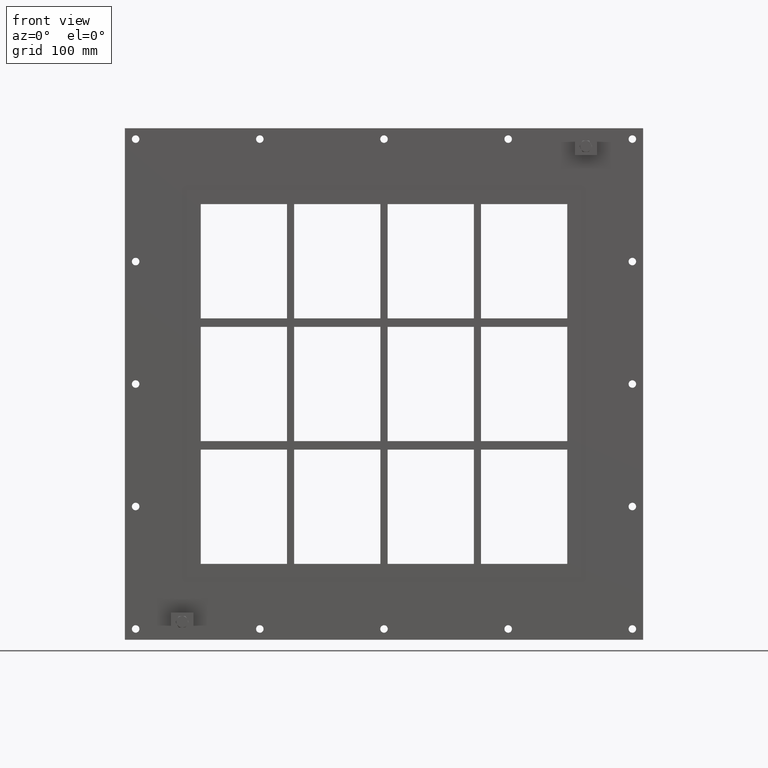
[diagram: clean part render]
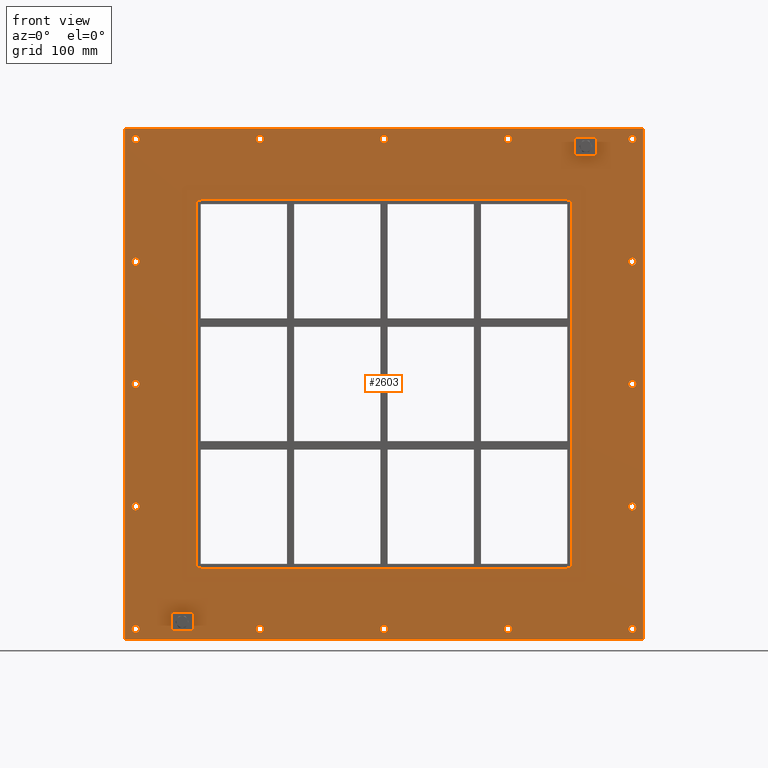
[diagram: same view with one face highlighted and labeled with its STEP entity id]
A machine part, front view. The second image highlights one B-rep face of the part: STEP entity #2603.
In plain terms, the highlighted planar face has unit normal (0, 1, 0).
Its self-contained STEP definition (entity closure, byte-faithful):
#84=CARTESIAN_POINT('',(-341.75000000000017,0.0,-342.25000000000011));
#85=VERTEX_POINT('',#84);
#86=CARTESIAN_POINT('',(-347.00000000000017,0.0,-342.25000000000011));
#87=DIRECTION('',(0.0,1.0,0.0));
#88=DIRECTION('',(1.0,0.0,0.0));
#89=AXIS2_PLACEMENT_3D('',#86,#87,#88);
#90=CIRCLE('',#89,5.25);
#91=EDGE_CURVE('',#85,#85,#90,.T.);
#112=CARTESIAN_POINT('',(352.24999999999989,0.0,-171.15000000000009));
#113=VERTEX_POINT('',#112);
#114=CARTESIAN_POINT('',(346.99999999999989,0.0,-171.15000000000009));
#115=DIRECTION('',(0.0,1.0,0.0));
#116=DIRECTION('',(1.0,0.0,0.0));
#117=AXIS2_PLACEMENT_3D('',#114,#115,#116);
#118=CIRCLE('',#117,5.25);
#119=EDGE_CURVE('',#113,#113,#118,.T.);
#140=CARTESIAN_POINT('',(-341.75000000000017,0.0,-171.15000000000009));
#141=VERTEX_POINT('',#140);
#142=CARTESIAN_POINT('',(-347.00000000000017,0.0,-171.15000000000009));
#143=DIRECTION('',(0.0,1.0,0.0));
#144=DIRECTION('',(1.0,0.0,0.0));
#145=AXIS2_PLACEMENT_3D('',#142,#143,#144);
#146=CIRCLE('',#145,5.25);
#147=EDGE_CURVE('',#141,#141,#146,.T.);
#168=CARTESIAN_POINT('',(352.24999999999989,0.0,-0.050000000000097));
#169=VERTEX_POINT('',#168);
#170=CARTESIAN_POINT('',(346.99999999999989,0.0,-0.050000000000097));
#171=DIRECTION('',(0.0,1.0,0.0));
#172=DIRECTION('',(1.0,0.0,0.0));
#173=AXIS2_PLACEMENT_3D('',#170,#171,#172);
#174=CIRCLE('',#173,5.25);
#175=EDGE_CURVE('',#169,#169,#174,.T.);
#196=CARTESIAN_POINT('',(-341.75000000000017,0.0,-0.050000000000097));
#197=VERTEX_POINT('',#196);
#198=CARTESIAN_POINT('',(-347.00000000000017,0.0,-0.050000000000097));
#199=DIRECTION('',(0.0,1.0,0.0));
#200=DIRECTION('',(1.0,0.0,0.0));
#201=AXIS2_PLACEMENT_3D('',#198,#199,#200);
#202=CIRCLE('',#201,5.25);
#203=EDGE_CURVE('',#197,#197,#202,.T.);
#224=CARTESIAN_POINT('',(352.24999999999989,0.0,171.0499999999999));
#225=VERTEX_POINT('',#224);
#226=CARTESIAN_POINT('',(346.99999999999989,0.0,171.0499999999999));
#227=DIRECTION('',(0.0,1.0,0.0));
#228=DIRECTION('',(1.0,0.0,0.0));
#229=AXIS2_PLACEMENT_3D('',#226,#227,#228);
#230=CIRCLE('',#229,5.25);
#231=EDGE_CURVE('',#225,#225,#230,.T.);
#252=CARTESIAN_POINT('',(-341.75000000000017,0.0,171.0499999999999));
#253=VERTEX_POINT('',#252);
#254=CARTESIAN_POINT('',(-347.00000000000017,0.0,171.0499999999999));
#255=DIRECTION('',(0.0,1.0,0.0));
#256=DIRECTION('',(1.0,0.0,0.0));
#257=AXIS2_PLACEMENT_3D('',#254,#255,#256);
#258=CIRCLE('',#257,5.25);
#259=EDGE_CURVE('',#253,#253,#258,.T.);
#280=CARTESIAN_POINT('',(-168.25000000000017,0.0,342.14999999999986));
#281=VERTEX_POINT('',#280);
#282=CARTESIAN_POINT('',(-173.50000000000017,0.0,342.14999999999986));
#283=DIRECTION('',(0.0,1.0,0.0));
#284=DIRECTION('',(1.0,0.0,0.0));
#285=AXIS2_PLACEMENT_3D('',#282,#283,#284);
#286=CIRCLE('',#285,5.25);
#287=EDGE_CURVE('',#281,#281,#286,.T.);
#308=CARTESIAN_POINT('',(-168.25000000000017,0.0,-342.25000000000011));
#309=VERTEX_POINT('',#308);
#310=CARTESIAN_POINT('',(-173.50000000000017,0.0,-342.25000000000011));
#311=DIRECTION('',(0.0,1.0,0.0));
#312=DIRECTION('',(1.0,0.0,0.0));
#313=AXIS2_PLACEMENT_3D('',#310,#311,#312);
#314=CIRCLE('',#313,5.25);
#315=EDGE_CURVE('',#309,#309,#314,.T.);
#336=CARTESIAN_POINT('',(5.249999999999844,0.0,342.14999999999986));
#337=VERTEX_POINT('',#336);
#338=CARTESIAN_POINT('',(-1.421085E-013,0.0,342.14999999999986));
#339=DIRECTION('',(0.0,1.0,0.0));
#340=DIRECTION('',(1.0,0.0,0.0));
#341=AXIS2_PLACEMENT_3D('',#338,#339,#340);
#342=CIRCLE('',#341,5.25);
#343=EDGE_CURVE('',#337,#337,#342,.T.);
#364=CARTESIAN_POINT('',(5.249999999999844,0.0,-342.25000000000011));
#365=VERTEX_POINT('',#364);
#366=CARTESIAN_POINT('',(-1.421085E-013,0.0,-342.25000000000011));
#367=DIRECTION('',(0.0,1.0,0.0));
#368=DIRECTION('',(1.0,0.0,0.0));
#369=AXIS2_PLACEMENT_3D('',#366,#367,#368);
#370=CIRCLE('',#369,5.25);
#371=EDGE_CURVE('',#365,#365,#370,.T.);
#392=CARTESIAN_POINT('',(178.74999999999986,0.0,342.14999999999986));
#393=VERTEX_POINT('',#392);
#394=CARTESIAN_POINT('',(173.49999999999989,0.0,342.14999999999986));
#395=DIRECTION('',(0.0,1.0,0.0));
#396=DIRECTION('',(1.0,0.0,0.0));
#397=AXIS2_PLACEMENT_3D('',#394,#395,#396);
#398=CIRCLE('',#397,5.25);
#399=EDGE_CURVE('',#393,#393,#398,.T.);
#420=CARTESIAN_POINT('',(178.74999999999986,0.0,-342.25000000000011));
#421=VERTEX_POINT('',#420);
#422=CARTESIAN_POINT('',(173.49999999999989,0.0,-342.25000000000011));
#423=DIRECTION('',(0.0,1.0,0.0));
#424=DIRECTION('',(1.0,0.0,0.0));
#425=AXIS2_PLACEMENT_3D('',#422,#423,#424);
#426=CIRCLE('',#425,5.25);
#427=EDGE_CURVE('',#421,#421,#426,.T.);
#448=CARTESIAN_POINT('',(352.24999999999989,0.0,-342.25000000000011));
#449=VERTEX_POINT('',#448);
#450=CARTESIAN_POINT('',(346.99999999999989,0.0,-342.25000000000011));
#451=DIRECTION('',(0.0,1.0,0.0));
#452=DIRECTION('',(1.0,0.0,0.0));
#453=AXIS2_PLACEMENT_3D('',#450,#451,#452);
#454=CIRCLE('',#453,5.25);
#455=EDGE_CURVE('',#449,#449,#454,.T.);
#476=CARTESIAN_POINT('',(-341.75000000000017,0.0,342.14999999999986));
#477=VERTEX_POINT('',#476);
#478=CARTESIAN_POINT('',(-347.00000000000017,0.0,342.14999999999986));
#479=DIRECTION('',(0.0,1.0,0.0));
#480=DIRECTION('',(1.0,0.0,0.0));
#481=AXIS2_PLACEMENT_3D('',#478,#479,#480);
#482=CIRCLE('',#481,5.25);
#483=EDGE_CURVE('',#477,#477,#482,.T.);
#504=CARTESIAN_POINT('',(352.24999999999989,0.0,342.14999999999986));
#505=VERTEX_POINT('',#504);
#506=CARTESIAN_POINT('',(346.99999999999989,0.0,342.14999999999986));
#507=DIRECTION('',(0.0,1.0,0.0));
#508=DIRECTION('',(1.0,0.0,0.0));
#509=AXIS2_PLACEMENT_3D('',#506,#507,#508);
#510=CIRCLE('',#509,5.25);
#511=EDGE_CURVE('',#505,#505,#510,.T.);
#2446=CARTESIAN_POINT('',(-3.556418E-014,0.0,0.0));
#2447=DIRECTION('',(0.0,1.0,0.0));
#2448=DIRECTION('',(0.0,0.0,1.0));
#2449=AXIS2_PLACEMENT_3D('',#2446,#2447,#2448);
#2450=PLANE('',#2449);
#2451=CARTESIAN_POINT('',(-362.0,0.0,357.25));
#2452=VERTEX_POINT('',#2451);
#2453=CARTESIAN_POINT('',(361.99999999999994,0.0,357.25));
#2454=VERTEX_POINT('',#2453);
#2455=CARTESIAN_POINT('',(-362.0,0.0,357.25));
#2456=DIRECTION('',(1.0,0.0,0.0));
#2457=VECTOR('',#2456,724.0);
#2458=LINE('',#2455,#2457);
#2459=EDGE_CURVE('',#2452,#2454,#2458,.T.);
#2460=ORIENTED_EDGE('',*,*,#2459,.F.);
#2461=CARTESIAN_POINT('',(-362.0,0.0,-357.25));
#2462=VERTEX_POINT('',#2461);
#2463=CARTESIAN_POINT('',(-362.0,0.0,-357.25));
#2464=DIRECTION('',(0.0,0.0,1.0));
#2465=VECTOR('',#2464,714.5);
#2466=LINE('',#2463,#2465);
#2467=EDGE_CURVE('',#2462,#2452,#2466,.T.);
#2468=ORIENTED_EDGE('',*,*,#2467,.F.);
#2469=CARTESIAN_POINT('',(361.99999999999994,0.0,-357.25));
#2470=VERTEX_POINT('',#2469);
#2471=CARTESIAN_POINT('',(361.99999999999994,0.0,-357.25));
#2472=DIRECTION('',(-1.0,0.0,0.0));
#2473=VECTOR('',#2472,724.0);
#2474=LINE('',#2471,#2473);
#2475=EDGE_CURVE('',#2470,#2462,#2474,.T.);
#2476=ORIENTED_EDGE('',*,*,#2475,.F.);
#2477=CARTESIAN_POINT('',(361.99999999999994,0.0,357.25));
#2478=DIRECTION('',(0.0,0.0,-1.0));
#2479=VECTOR('',#2478,714.5);
#2480=LINE('',#2477,#2479);
#2481=EDGE_CURVE('',#2454,#2470,#2480,.T.);
#2482=ORIENTED_EDGE('',*,*,#2481,.F.);
#2483=EDGE_LOOP('',(#2460,#2468,#2476,#2482));
#2484=FACE_OUTER_BOUND('',#2483,.T.);
#2485=ORIENTED_EDGE('',*,*,#91,.T.);
#2486=EDGE_LOOP('',(#2485));
#2487=FACE_BOUND('',#2486,.T.);
#2488=ORIENTED_EDGE('',*,*,#119,.T.);
#2489=EDGE_LOOP('',(#2488));
#2490=FACE_BOUND('',#2489,.T.);
#2491=ORIENTED_EDGE('',*,*,#147,.T.);
#2492=EDGE_LOOP('',(#2491));
#2493=FACE_BOUND('',#2492,.T.);
#2494=ORIENTED_EDGE('',*,*,#175,.T.);
#2495=EDGE_LOOP('',(#2494));
#2496=FACE_BOUND('',#2495,.T.);
#2497=ORIENTED_EDGE('',*,*,#203,.T.);
#2498=EDGE_LOOP('',(#2497));
#2499=FACE_BOUND('',#2498,.T.);
#2500=ORIENTED_EDGE('',*,*,#231,.T.);
#2501=EDGE_LOOP('',(#2500));
#2502=FACE_BOUND('',#2501,.T.);
#2503=ORIENTED_EDGE('',*,*,#259,.T.);
#2504=EDGE_LOOP('',(#2503));
#2505=FACE_BOUND('',#2504,.T.);
#2506=ORIENTED_EDGE('',*,*,#287,.T.);
#2507=EDGE_LOOP('',(#2506));
#2508=FACE_BOUND('',#2507,.T.);
#2509=ORIENTED_EDGE('',*,*,#315,.T.);
#2510=EDGE_LOOP('',(#2509));
#2511=FACE_BOUND('',#2510,.T.);
#2512=ORIENTED_EDGE('',*,*,#343,.T.);
#2513=EDGE_LOOP('',(#2512));
#2514=FACE_BOUND('',#2513,.T.);
#2515=ORIENTED_EDGE('',*,*,#371,.T.);
#2516=EDGE_LOOP('',(#2515));
#2517=FACE_BOUND('',#2516,.T.);
#2518=ORIENTED_EDGE('',*,*,#399,.T.);
#2519=EDGE_LOOP('',(#2518));
#2520=FACE_BOUND('',#2519,.T.);
#2521=ORIENTED_EDGE('',*,*,#427,.T.);
#2522=EDGE_LOOP('',(#2521));
#2523=FACE_BOUND('',#2522,.T.);
#2524=ORIENTED_EDGE('',*,*,#455,.T.);
#2525=EDGE_LOOP('',(#2524));
#2526=FACE_BOUND('',#2525,.T.);
#2527=ORIENTED_EDGE('',*,*,#483,.T.);
#2528=EDGE_LOOP('',(#2527));
#2529=FACE_BOUND('',#2528,.T.);
#2530=ORIENTED_EDGE('',*,*,#511,.T.);
#2531=EDGE_LOOP('',(#2530));
#2532=FACE_BOUND('',#2531,.T.);
#2533=CARTESIAN_POINT('',(-256.0,0.0,257.25));
#2534=VERTEX_POINT('',#2533);
#2535=CARTESIAN_POINT('',(-262.0,0.0,251.25));
#2536=VERTEX_POINT('',#2535);
#2537=CARTESIAN_POINT('',(-256.0,0.0,251.25));
#2538=DIRECTION('',(0.0,-1.0,0.0));
#2539=DIRECTION('',(-0.707106781186548,0.0,0.707106781186548));
#2540=AXIS2_PLACEMENT_3D('',#2537,#2538,#2539);
#2541=CIRCLE('',#2540,6.000000000000002);
#2542=EDGE_CURVE('',#2534,#2536,#2541,.T.);
#2543=ORIENTED_EDGE('',*,*,#2542,.F.);
#2544=CARTESIAN_POINT('',(256.0,0.0,257.25));
#2545=VERTEX_POINT('',#2544);
#2546=CARTESIAN_POINT('',(255.99999999999997,0.0,257.25));
#2547=DIRECTION('',(-1.0,0.0,0.0));
#2548=VECTOR('',#2547,512.0);
#2549=LINE('',#2546,#2548);
#2550=EDGE_CURVE('',#2545,#2534,#2549,.T.);
#2551=ORIENTED_EDGE('',*,*,#2550,.F.);
#2552=CARTESIAN_POINT('',(262.0,0.0,251.25));
#2553=VERTEX_POINT('',#2552);
#2554=CARTESIAN_POINT('',(256.0,0.0,251.25));
#2555=DIRECTION('',(0.0,-1.0,0.0));
#2556=DIRECTION('',(0.707106781186548,0.0,0.707106781186548));
#2557=AXIS2_PLACEMENT_3D('',#2554,#2555,#2556);
#2558=CIRCLE('',#2557,6.000000000000002);
#2559=EDGE_CURVE('',#2553,#2545,#2558,.T.);
#2560=ORIENTED_EDGE('',*,*,#2559,.F.);
#2561=CARTESIAN_POINT('',(262.0,0.0,-251.25));
#2562=VERTEX_POINT('',#2561);
#2563=CARTESIAN_POINT('',(262.0,0.0,-251.25));
#2564=DIRECTION('',(0.0,0.0,1.0));
#2565=VECTOR('',#2564,502.5);
#2566=LINE('',#2563,#2565);
#2567=EDGE_CURVE('',#2562,#2553,#2566,.T.);
#2568=ORIENTED_EDGE('',*,*,#2567,.F.);
#2569=CARTESIAN_POINT('',(256.0,0.0,-257.25));
#2570=VERTEX_POINT('',#2569);
#2571=CARTESIAN_POINT('',(256.0,0.0,-251.25));
#2572=DIRECTION('',(0.0,-1.0,0.0));
#2573=DIRECTION('',(0.707106781186548,0.0,-0.707106781186548));
#2574=AXIS2_PLACEMENT_3D('',#2571,#2572,#2573);
#2575=CIRCLE('',#2574,6.000000000000002);
#2576=EDGE_CURVE('',#2570,#2562,#2575,.T.);
#2577=ORIENTED_EDGE('',*,*,#2576,.F.);
#2578=CARTESIAN_POINT('',(-256.0,0.0,-257.25));
#2579=VERTEX_POINT('',#2578);
#2580=CARTESIAN_POINT('',(-256.0,0.0,-257.25));
#2581=DIRECTION('',(1.0,0.0,0.0));
#2582=VECTOR('',#2581,512.0);
#2583=LINE('',#2580,#2582);
#2584=EDGE_CURVE('',#2579,#2570,#2583,.T.);
#2585=ORIENTED_EDGE('',*,*,#2584,.F.);
#2586=CARTESIAN_POINT('',(-262.0,0.0,-251.25));
#2587=VERTEX_POINT('',#2586);
#2588=CARTESIAN_POINT('',(-256.0,0.0,-251.25));
#2589=DIRECTION('',(0.0,-1.0,0.0));
#2590=DIRECTION('',(-0.707106781186548,0.0,-0.707106781186548));
#2591=AXIS2_PLACEMENT_3D('',#2588,#2589,#2590);
#2592=CIRCLE('',#2591,6.000000000000002);
#2593=EDGE_CURVE('',#2587,#2579,#2592,.T.);
#2594=ORIENTED_EDGE('',*,*,#2593,.F.);
#2595=CARTESIAN_POINT('',(-262.0,0.0,251.25));
#2596=DIRECTION('',(0.0,0.0,-1.0));
#2597=VECTOR('',#2596,502.5);
#2598=LINE('',#2595,#2597);
#2599=EDGE_CURVE('',#2536,#2587,#2598,.T.);
#2600=ORIENTED_EDGE('',*,*,#2599,.F.);
#2601=EDGE_LOOP('',(#2543,#2551,#2560,#2568,#2577,#2585,#2594,#2600));
#2602=FACE_BOUND('',#2601,.T.);
#2603=ADVANCED_FACE('',(#2484,#2487,#2490,#2493,#2496,#2499,#2502,#2505,#2508,#2511,#2514,#2517,#2520,#2523,#2526,#2529,#2532,#2602),#2450,.F.);